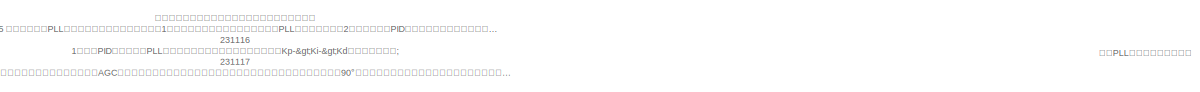
[diagram: root canvas - part 1/2, top center region]
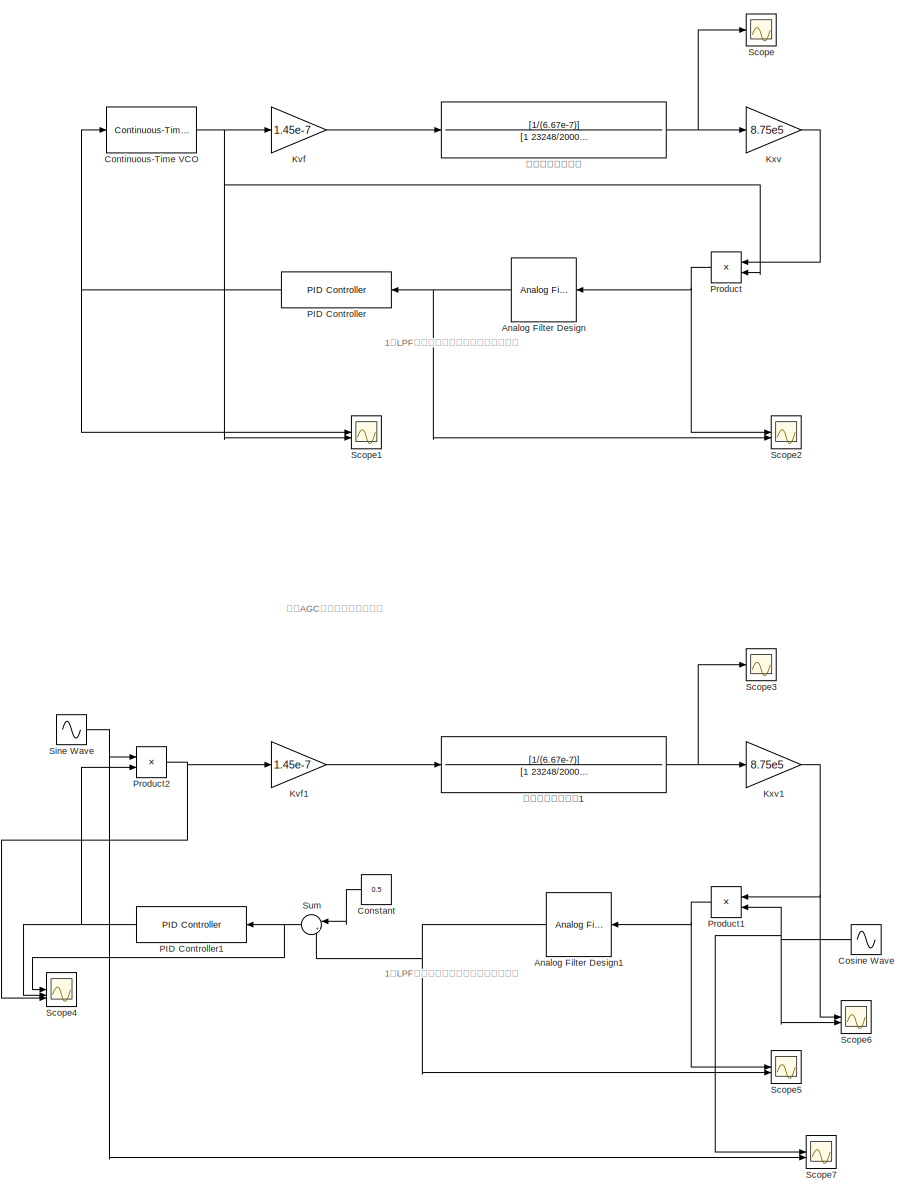
[diagram: root canvas - part 2/2, right side, full height]
MODEL slx_94a9962e7143
KIND model
CONFIG AbsTol = auto
CONFIG EnableMultiTasking = off
CONFIG FixedStep = auto
CONFIG MaxStep = auto
CONFIG MinStep = auto
CONFIG RelTol = 1e-3
CONFIG SampleTimeConstraint = Unconstrained
CONFIG SolverName = VariableStepAuto
CONFIG StartTime = 0.0
CONFIG StopTime = 5
BLOCK [Reference] Analog Filter Design  REF=dsparch4/Analog
Filter Design
  NameLocation = top
  SourceBlock = dsparch4/Analog\nFilter Design
  SourceType = Analog Filter Design
BLOCK [Reference] Analog Filter Design1  REF=dsparch4/Analog
Filter Design
  NameLocation = top
  SourceBlock = dsparch4/Analog\nFilter Design
  SourceType = Analog Filter Design
BLOCK [Constant] Constant
  NameLocation = top
  Value = 0.5
BLOCK [Reference] Continuous-Time VCO  REF=commsynccomp2/Continuous-Time
VCO
  SourceBlock = commsynccomp2/Continuous-Time\nVCO
  SourceType = Continuous-Time VCO
BLOCK [Sin] Cosine Wave
  Frequency = 23248
  Phase = -90
  SampleTime = 0
BLOCK [Gain] Kvf
  Gain = 1.45e-7
BLOCK [Gain] Kvf1
  Gain = 1.45e-7
BLOCK [Gain] Kxv
  Gain = 8.75e5
BLOCK [Gain] Kxv1
  Gain = 8.75e5
BLOCK [Reference] PID Controller  REF=slpidlib/PID Controller
  LibrarySourceBlock = simulink/Continuous/PID Controller
  NameLocation = top
  SourceBlock = slpidlib/PID Controller
  SourceType = PID 1dof
BLOCK [Reference] PID Controller1  REF=slpidlib/PID Controller
  LibrarySourceBlock = simulink/Continuous/PID Controller
  NameLocation = top
  SourceBlock = slpidlib/PID Controller
  SourceType = PID 1dof
BLOCK [Product] Product
  NameLocation = top
BLOCK [Product] Product1
  NameLocation = top
BLOCK [Product] Product2
BLOCK [Scope] Scope
  Floating = off
  NumInputPorts = 1
  ScopeSpecificationString = Simulink.scopes.TimeScopeBlockCfg('CurrentConfiguration', extmgr.ConfigurationSet(extmgr.Configuration('Core','General UI',true),extmgr.Configuration('Core','Source UI',true),extmgr.Configuration('Sources','WiredSimulink',true),extmgr.Configuration('Visuals','Time Domain',true,'SerializedDisplays',{struct('MinYLimReal','-0.000001','MaxYLimReal','0.000001','YLabelReal','','MinYLimMag','0.0000000','...<+1442ch>
BLOCK [Scope] Scope1
  Floating = off
  NumInputPorts = 2
  ScopeSpecificationString = Simulink.scopes.TimeScopeBlockCfg('CurrentConfiguration', extmgr.ConfigurationSet(extmgr.Configuration('Core','General UI',true),extmgr.Configuration('Core','Source UI',true),extmgr.Configuration('Sources','WiredSimulink',true,'DataLoggingVariableName','ScopeData1'),extmgr.Configuration('Visuals','Time Domain',true,'SerializedDisplays',{struct('MinYLimReal','-0.31877','MaxYLimReal','0.03542','YLab...<+2112ch>
BLOCK [Scope] Scope2
  Floating = off
  NumInputPorts = 2
  ScopeSpecificationString = Simulink.scopes.TimeScopeBlockCfg('CurrentConfiguration', extmgr.ConfigurationSet(extmgr.Configuration('Core','General UI',true),extmgr.Configuration('Core','Source UI',true),extmgr.Configuration('Sources','WiredSimulink',true,'DataLoggingVariableName','ScopeData2'),extmgr.Configuration('Visuals','Time Domain',true,'SerializedDisplays',{struct('MinYLimReal','-0.44428','MaxYLimReal','0.44354','YLab...<+2094ch>
BLOCK [Scope] Scope3
  Floating = off
  NumInputPorts = 1
  ScopeSpecificationString = Simulink.scopes.TimeScopeBlockCfg('CurrentConfiguration', extmgr.ConfigurationSet(extmgr.Configuration('Core','General UI',true),extmgr.Configuration('Core','Source UI',true),extmgr.Configuration('Sources','WiredSimulink',true,'DataLoggingVariableName','ScopeData1'),extmgr.Configuration('Visuals','Time Domain',true,'SerializedDisplays',{struct('MinYLimReal','-0.0000032','MaxYLimReal','0.0000032','...<+1484ch>
BLOCK [Scope] Scope4
  Floating = off
  NumInputPorts = 3
  ScopeSpecificationString = Simulink.scopes.TimeScopeBlockCfg('CurrentConfiguration', extmgr.ConfigurationSet(extmgr.Configuration('Core','General UI',true),extmgr.Configuration('Core','Source UI',true),extmgr.Configuration('Sources','WiredSimulink',true,'DataLoggingVariableName','ScopeData2'),extmgr.Configuration('Visuals','Time Domain',true,'SerializedDisplays',{struct('MinYLimReal','-0.06604','MaxYLimReal','0.5629','YLabe...<+2833ch>
BLOCK [Scope] Scope5
  Floating = off
  NumInputPorts = 2
  ScopeSpecificationString = Simulink.scopes.TimeScopeBlockCfg('CurrentConfiguration', extmgr.ConfigurationSet(extmgr.Configuration('Core','General UI',true),extmgr.Configuration('Core','Source UI',true),extmgr.Configuration('Sources','WiredSimulink',true,'DataLoggingVariableName','ScopeData3'),extmgr.Configuration('Visuals','Time Domain',true,'SerializedDisplays',{struct('MinYLimReal','-0.93352','MaxYLimReal','5.62017','YLab...<+2094ch>
BLOCK [Scope] Scope6
  Floating = off
  NumInputPorts = 2
  ScopeSpecificationString = Simulink.scopes.TimeScopeBlockCfg('CurrentConfiguration', extmgr.ConfigurationSet(extmgr.Configuration('Core','General UI',true),extmgr.Configuration('Core','Source UI',true),extmgr.Configuration('Sources','WiredSimulink',true,'DataLoggingVariableName','ScopeData4'),extmgr.Configuration('Visuals','Time Domain',true,'SerializedDisplays',{struct('MinYLimReal','-2.25706','MaxYLimReal','2.25121','YLab...<+2128ch>
BLOCK [Scope] Scope7
  Floating = off
  NumInputPorts = 2
  ScopeSpecificationString = Simulink.scopes.TimeScopeBlockCfg('CurrentConfiguration', extmgr.ConfigurationSet(extmgr.Configuration('Core','General UI',true),extmgr.Configuration('Core','Source UI',true),extmgr.Configuration('Sources','WiredSimulink',true,'DataLoggingVariableName','ScopeData5'),extmgr.Configuration('Visuals','Time Domain',true,'SerializedDisplays',{struct('MinYLimReal','-0.625','MaxYLimReal','0.625','YLabelRe...<+1524ch>
BLOCK [Sin] Sine Wave
  Frequency = 23248
  SampleTime = 0
BLOCK [Sum] Sum
  Inputs = |+-
  NameLocation = top
BLOCK [TransferFcn] 驱动模态传递函数
  Denominator = [1 23248/2000 23248^2]
  Numerator = [1/(6.67e-7)]
BLOCK [TransferFcn] 驱动模态传递函数1
  Denominator = [1 23248/2000 23248^2]
  Numerator = [1/(6.67e-7)]
ANNOTATION (root): 1阶LPF：可选择多种滤波器类型进行比较
ANNOTATION (root): 基于AGC的闭环驱动幅度控制
ANNOTATION (root): 基于PLL的 闭环驱动频率控制
ANNOTATION (root): 注释：参考王晓雷博士论文搭建的闭环驱动控制仿真 231115 初步完成了对PLL相位闭环控制验证。后续方向：1）可以仿照夏国明大论文做更完整的PLL闭环驱动仿真。2）这一部分的PID调节还不太熟悉，后续可以看书籍与资料，看看如何对PID参数进行整定更好一些 3）如何对信号的频率进行测量，绘制信号频率随时间变化曲线 231116 1）利用PID试凑准则对PLL闭环驱动频率控制，在闭环系统中按照Kp->Ki->Kd的顺序进行调节; 231117 2）提取驱动检测信号幅度，对驱动幅值实现AGC闭环控制。注意调制与解调信号的相位关系，解调信号相位滞后调制信号90°，因为驱动力信号经过陀螺驱动模态后，相位滞后90°，因此解调信号同样需要附加相位90°滞后
NET Analog Filter Design1:1 -> Scope5:2, Sum:2
NET Analog Filter Design:1 -> PID Controller:1, Scope2:2
LINE Constant:1 -> Sum:1
NET Continuous-Time VCO:1 -> Kvf:1, Product:2, Scope1:2
NET Cosine Wave:1 -> Product1:2, Scope6:2, Scope7:1
LINE Kvf1:1 -> 驱动模态传递函数1:1
LINE Kvf:1 -> 驱动模态传递函数:1
NET Kxv1:1 -> Product1:1, Scope6:1
LINE Kxv:1 -> Product:1
NET PID Controller1:1 -> Product2:2, Scope4:2
NET PID Controller:1 -> Continuous-Time VCO:1, Scope1:1
NET Product1:1 -> Analog Filter Design1:1, Scope5:1
NET Product2:1 -> Kvf1:1, Scope4:3
NET Product:1 -> Analog Filter Design:1, Scope2:1
NET Sine Wave:1 -> Product2:1, Scope7:2
NET Sum:1 -> PID Controller1:1, Scope4:1
NET 驱动模态传递函数1:1 -> Kxv1:1, Scope3:1
NET 驱动模态传递函数:1 -> Kxv:1, Scope:1
note: NET lines group one-source signal fan-out (src -> all destinations, sorted); 1:1 wires keep LINE
